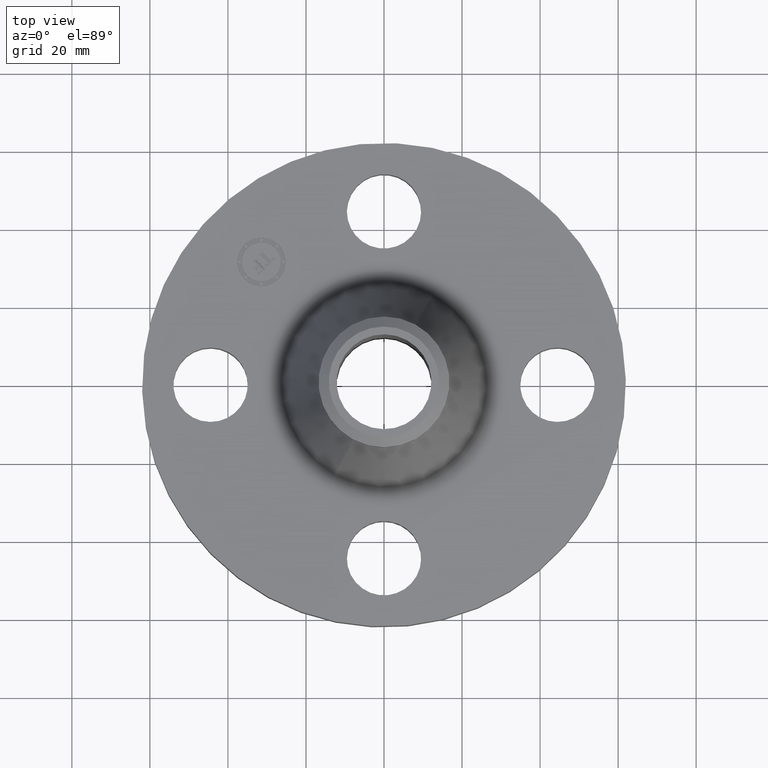
[diagram: clean part render]
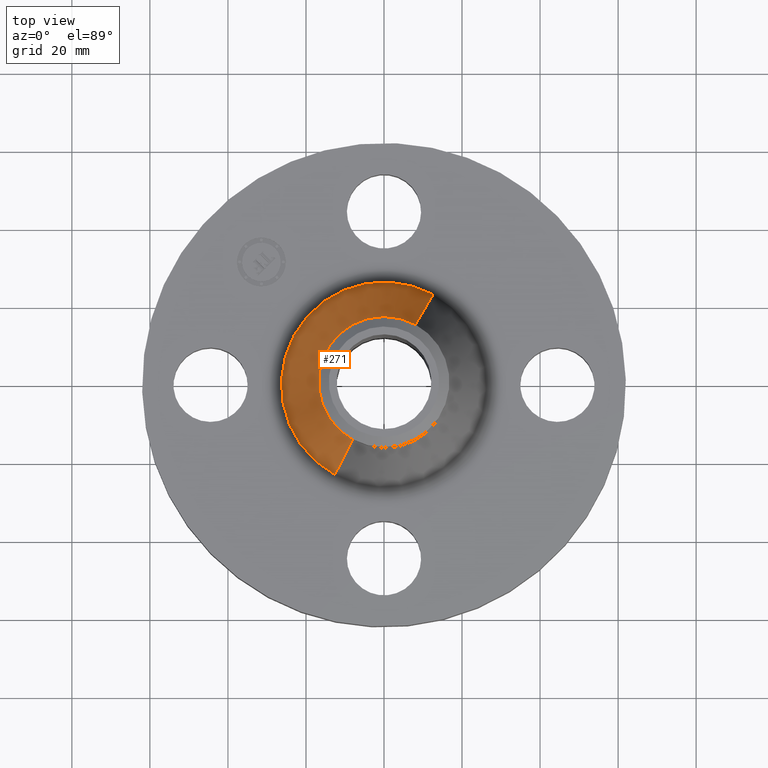
[diagram: same view with one face highlighted and labeled with its STEP entity id]
A machine part, top view. The second image highlights one B-rep face of the part: STEP entity #271.
In plain terms, the highlighted conical surface has half-angle 15.474 deg.
Its self-contained STEP definition (entity closure, byte-faithful):
#219=AXIS2_PLACEMENT_3D('Circle Axis2P3D',#217,#218,$) ;
#232=AXIS2_PLACEMENT_3D('Cone Axis2P3D',#229,#230,#231) ;
#262=AXIS2_PLACEMENT_3D('Circle Axis2P3D',#260,#261,$) ;
#190=CARTESIAN_POINT('Vertex',(0.496513817094,0.908862445851,0.707984487805)) ;
#197=CARTESIAN_POINT('Vertex',(-0.496513817094,-0.908862445851,0.707984487805)) ;
#217=CARTESIAN_POINT('Axis2P3D Location',(0.,0.,0.707984487805)) ;
#229=CARTESIAN_POINT('Axis2P3D Location',(0.,0.,2.06492912712)) ;
#234=CARTESIAN_POINT('Line Origine',(0.406467336287,0.744033468351,1.38645680746)) ;
#238=CARTESIAN_POINT('Vertex',(0.31642085548,0.57920449085,2.06492912712)) ;
#245=CARTESIAN_POINT('Vertex',(-0.31642085548,-0.57920449085,2.06492912712)) ;
#248=CARTESIAN_POINT('Line Origine',(-0.406467336287,-0.744033468351,1.38645680746)) ;
#260=CARTESIAN_POINT('Axis2P3D Location',(0.,0.,2.06492912712)) ;
#218=DIRECTION('Axis2P3D Direction',(0.,0.,-0.0393700787402)) ;
#230=DIRECTION('Axis2P3D Direction',(0.,0.,-0.0393700787402)) ;
#231=DIRECTION('Axis2P3D XDirection',(-0.0188750212049,-0.0345504945626,0.)) ;
#235=DIRECTION('Vector Direction',(0.0050357789301,0.00921793150081,-0.0379430332132)) ;
#249=DIRECTION('Vector Direction',(-0.0050357789301,-0.00921793150081,-0.0379430332132)) ;
#261=DIRECTION('Axis2P3D Direction',(0.,0.,-0.0393700787402)) ;
#236=VECTOR('Line Direction',#235,0.0393700787402) ;
#250=VECTOR('Line Direction',#249,0.0393700787402) ;
#266=ORIENTED_EDGE('',*,*,#221,.F.) ;
#267=ORIENTED_EDGE('',*,*,#252,.T.) ;
#268=ORIENTED_EDGE('',*,*,#264,.T.) ;
#269=ORIENTED_EDGE('',*,*,#240,.F.) ;
#271=ADVANCED_FACE('PartBody',(#270),#233,.T.) ;
#220=CIRCLE('generated circle',#219,1.03564323782) ;
#263=CIRCLE('generated circle',#262,0.660000000003) ;
#233=CONICAL_SURFACE('Cone',#232,0.660000000003,0.270066923464) ;
#221=EDGE_CURVE('',#198,#191,#220,.T.) ;
#240=EDGE_CURVE('',#191,#239,#237,.F.) ;
#252=EDGE_CURVE('',#198,#246,#251,.F.) ;
#264=EDGE_CURVE('',#246,#239,#263,.T.) ;
#265=EDGE_LOOP('',(#266,#267,#268,#269)) ;
#270=FACE_OUTER_BOUND('',#265,.T.) ;
#237=LINE('Line',#234,#236) ;
#251=LINE('Line',#248,#250) ;
#191=VERTEX_POINT('',#190) ;
#198=VERTEX_POINT('',#197) ;
#239=VERTEX_POINT('',#238) ;
#246=VERTEX_POINT('',#245) ;